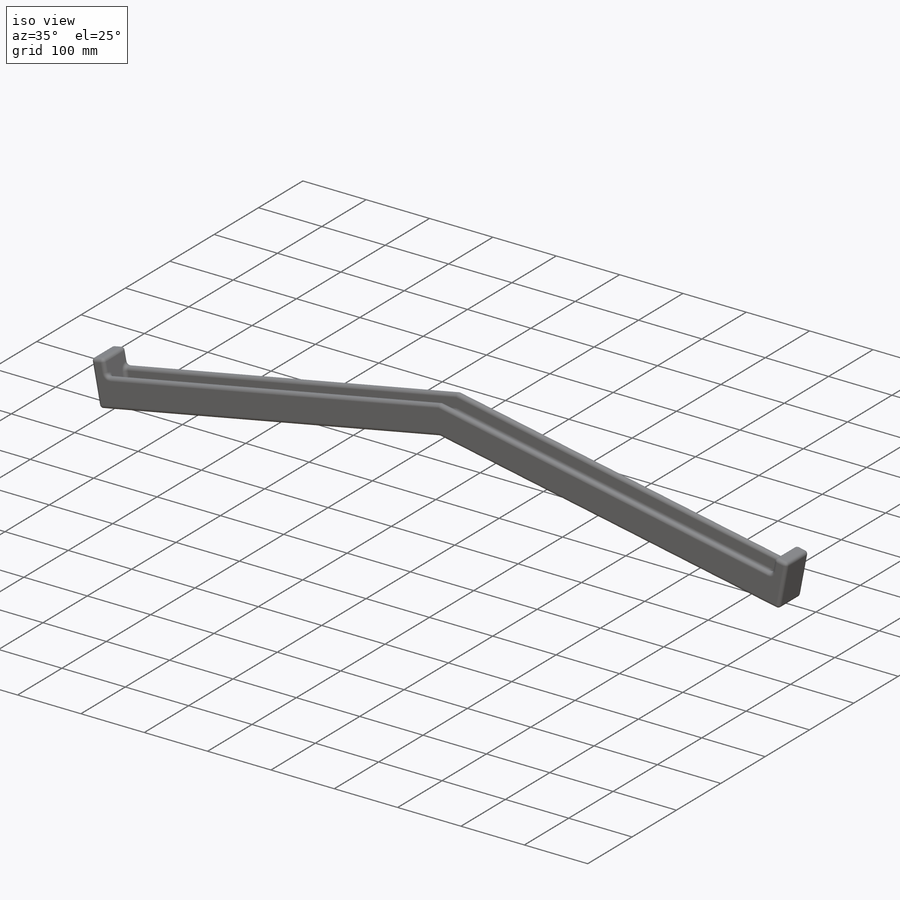
[diagram: iso view]
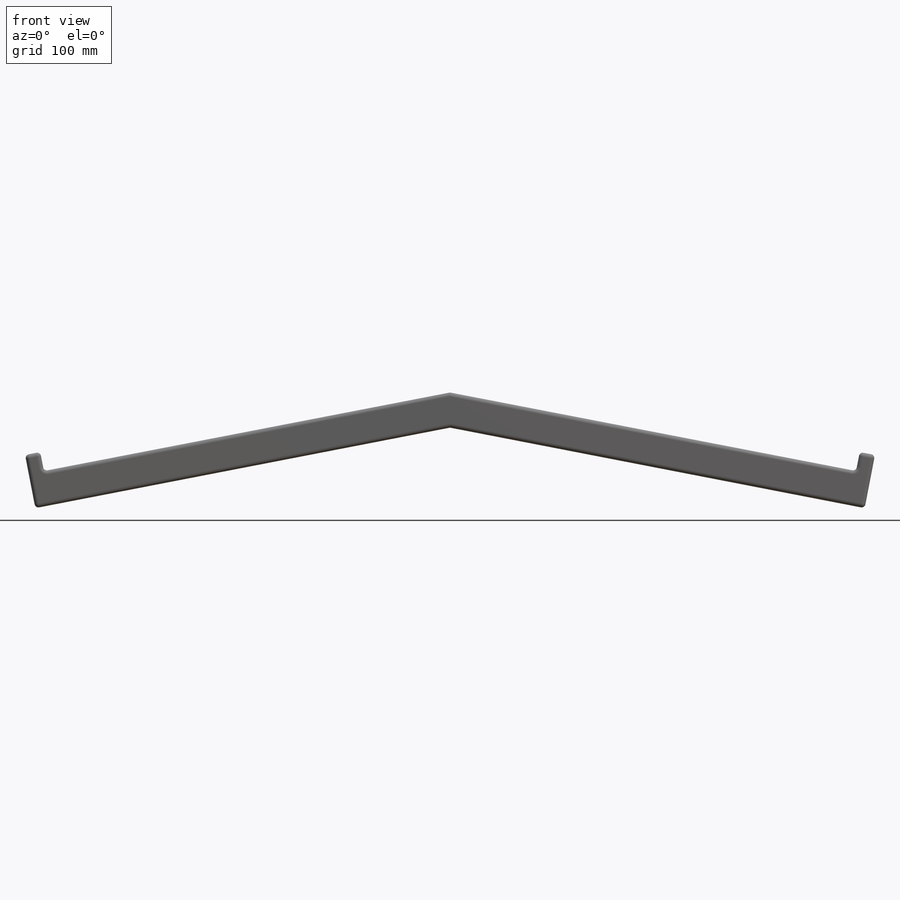
[diagram: front view]
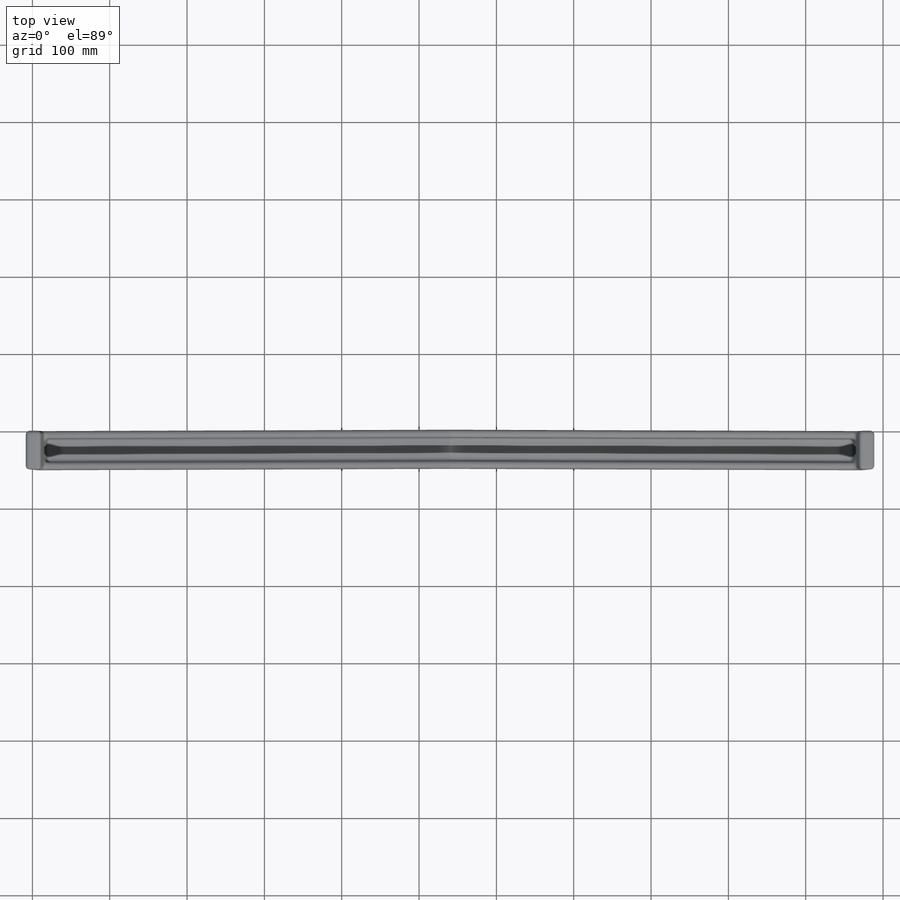
[diagram: top view]
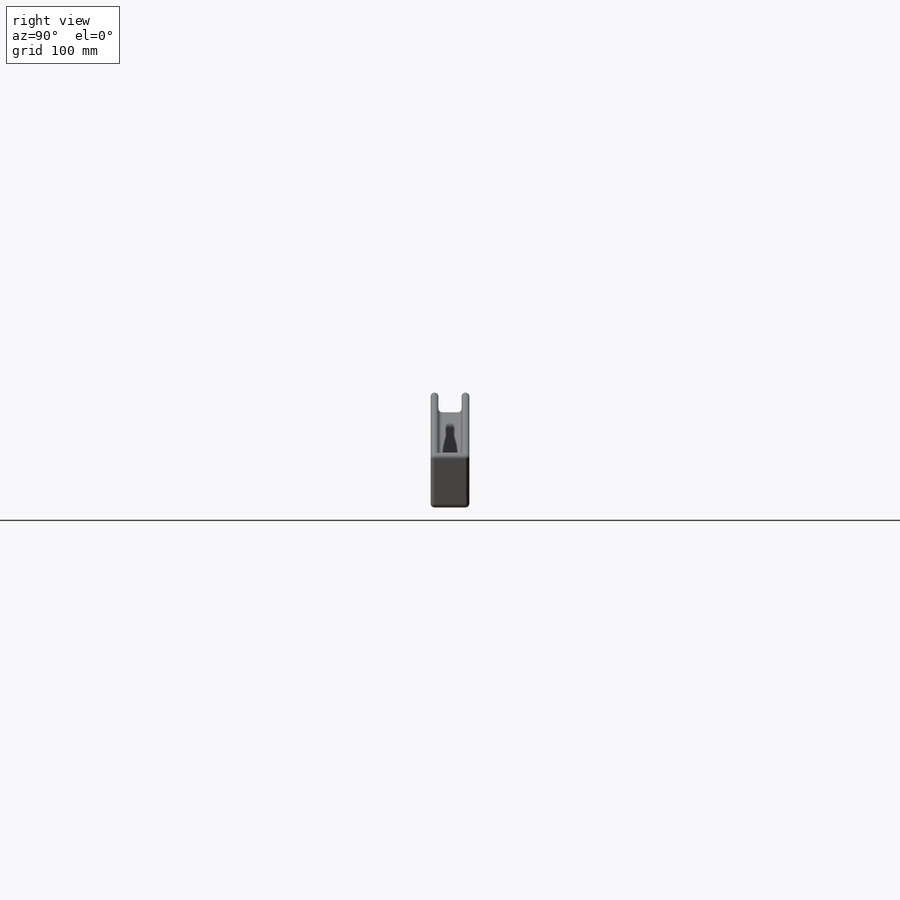
[diagram: right view]
SOLIDWORKS PART (.sldprt)
format: sldprt  version: not decoded by parser v0  size: 334,848 bytes
history: native  units: mm
features: plane x3, sketch x3, extrude x3, material x1, fillet x1 (+9 scaffold rows collapsed)
feature tree (20):
  scaffold x9  (default folders/planes/origin — collapsed)
  material  "Materiał <nieokreślony>"
  plane  "Płaszczyzna przednia"
  plane  "Płaszczyzna górna"
  plane  "Płaszczyzna prawa"
  sketch  "Szkic1"  dims[c1.D1=550.0mm c1.D2=550.0mm c1.D3=1080.0mm c1.D4=~52.777085mm c2.D4=90.0deg c2.D5=50.0mm c2.D6=20.0mm c2.D7=~73.729234mm c3.D7=90.0deg c3.D8=50.0mm c3.D9=20.0mm c3.D10=~44.279489mm c4.D10=~34.926321deg c5.D10=~43.106779mm c6.D10=90.0deg c6.D11=20.0mm c6.D12=20.0mm c6.D13=550.0mm c6.D14=550.0mm c7.D14=~169.057501deg c8.D14=550.0mm c8.D13=20.0mm c8.D11=20.0mm c8.D12=20.0mm c9.D14=~546.203646mm c9.D15=530.0mm c9.D16=530.0mm c9.D17=~50.925926mm c9.D8=50.0mm]
  extrude  "Dodanie-wyciągnięcie1"  Depth=50mm
  sketch  "Szkic4"
  extrude  "Dodanie-wyciągnięcie4"  Depth=10mm
  sketch  "Szkic5"
  extrude  "Dodanie-wyciągnięcie5"  Depth=10mm
  fillet  "Zaokrąglenie1"  Radius=5mm
decode coverage: 5 of 7 modeling features carry decoded parameters
note: ~ marks probable driven/reference dimensions
note: suppression state not decoded; provenance and decode notes live in map.json
